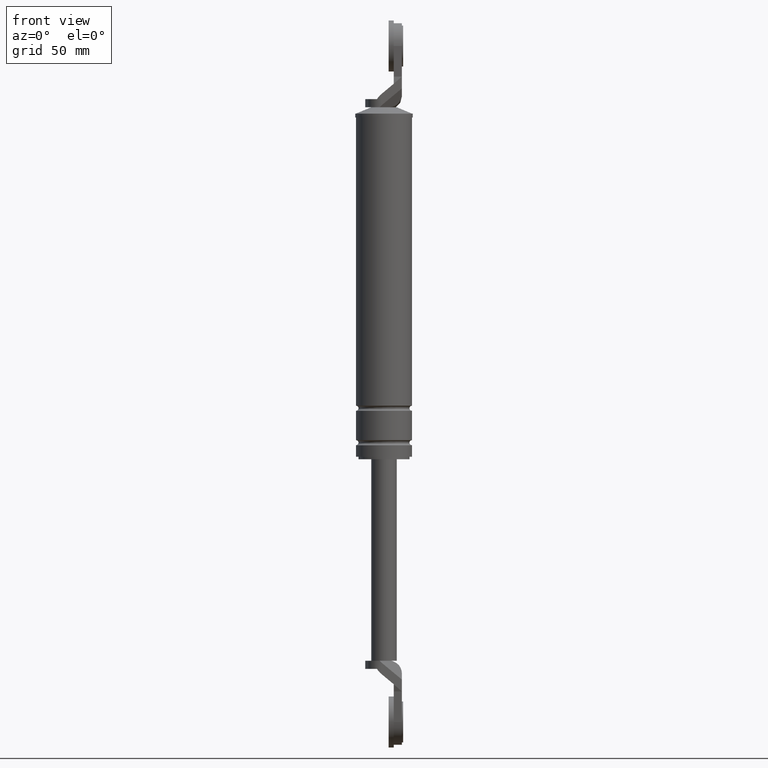
[diagram: clean part render]
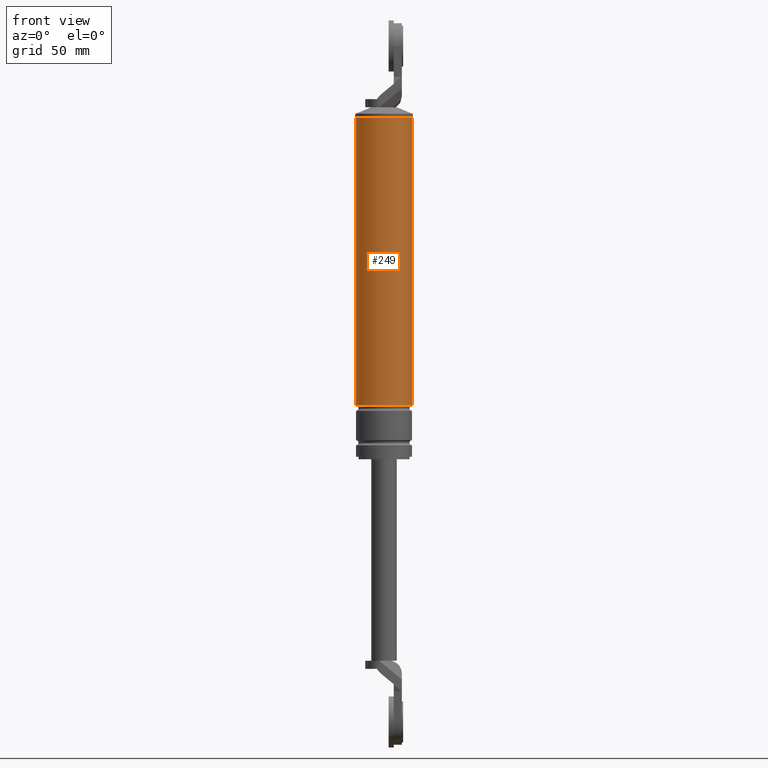
[diagram: same view with one face highlighted and labeled with its STEP entity id]
A machine part, front view. The second image highlights one B-rep face of the part: STEP entity #249.
In plain terms, the highlighted cylindrical surface (edge-blend (fillet) strip) has radius 11 mm, axis along (0, 0, 1).
Its self-contained STEP definition (entity closure, byte-faithful):
#249=ADVANCED_FACE('',(#747),#746,.T.);
#746=CYLINDRICAL_SURFACE('',#1487,1.10000000000E+001);
#747=FACE_OUTER_BOUND('',#1488,.T.);
#1484=CARTESIAN_POINT('',(0.00000000000E+000,3.58204186421E-014,0.00000000000E+000));
#1485=DIRECTION('',(-0.00000000000E+000,-0.00000000000E+000,1.00000000000E+000));
#1486=DIRECTION('',(1.00000000000E+000,0.00000000000E+000,0.00000000000E+000));
#1487=AXIS2_PLACEMENT_3D('',#1484,#1485,#1486);
#1488=EDGE_LOOP('',(#1992,#1993,#1994,#1995));
#1992=ORIENTED_EDGE('',*,*,#2292,.F.);
#1993=ORIENTED_EDGE('',*,*,#2293,.T.);
#1994=ORIENTED_EDGE('',*,*,#2267,.T.);
#1995=ORIENTED_EDGE('',*,*,#2294,.F.);
#2267=EDGE_CURVE('',#2966,#2967,#2968,.T.);
#2292=EDGE_CURVE('',#3097,#3096,#3130,.T.);
#2293=EDGE_CURVE('',#3097,#2966,#3136,.T.);
#2294=EDGE_CURVE('',#3096,#2967,#3142,.T.);
#2966=VERTEX_POINT('',#4077);
#2967=VERTEX_POINT('',#4078);
#2968=CIRCLE('',#4082,1.10000000000E+001);
#3096=VERTEX_POINT('',#4155);
#3097=VERTEX_POINT('',#4156);
#3130=CIRCLE('',#4184,1.10000000000E+001);
#3136=(BOUNDED_CURVE() B_SPLINE_CURVE(1,(#4185,#4186),.UNSPECIFIED.,.F.,.F.) B_SPLINE_CURVE_WITH_KNOTS((2,2),(7.51879695798E-002,9.24812029748E-001),.UNSPECIFIED.) CURVE() GEOMETRIC_REPRESENTATION_ITEM() RATIONAL_B_SPLINE_CURVE((1.00000000000E+000,1.00000000000E+000)) REPRESENTATION_ITEM('') );
#3142=(BOUNDED_CURVE() B_SPLINE_CURVE(1,(#4187,#4188),.UNSPECIFIED.,.F.,.F.) B_SPLINE_CURVE_WITH_KNOTS((2,2),(7.51879699248E-002,9.24812030075E-001),.UNSPECIFIED.) CURVE() GEOMETRIC_REPRESENTATION_ITEM() RATIONAL_B_SPLINE_CURVE((7.50000000000E-001,7.50000000000E-001)) REPRESENTATION_ITEM('') );
#4077=CARTESIAN_POINT('',(1.10000000000E+001,3.61192557345E-014,8.49999850000E+001));
#4078=CARTESIAN_POINT('',(-1.10000000000E+001,3.58204186421E-014,8.49999850000E+001));
#4079=CARTESIAN_POINT('',(0.00000000000E+000,3.58204186421E-014,8.49999850000E+001));
#4080=DIRECTION('',(-0.00000000000E+000,0.00000000000E+000,-1.00000000000E+000));
#4081=DIRECTION('',(-1.00000000000E+000,-1.22460635382E-016,0.00000000000E+000));
#4082=AXIS2_PLACEMENT_3D('',#4079,#4080,#4081);
#4155=CARTESIAN_POINT('',(-1.10000000000E+001,3.58204186421E-014,-2.80000150000E+001));
#4156=CARTESIAN_POINT('',(1.10000000000E+001,3.61192557345E-014,-2.80000150000E+001));
#4181=CARTESIAN_POINT('',(0.00000000000E+000,3.58204186421E-014,-2.80000150000E+001));
#4182=DIRECTION('',(-0.00000000000E+000,0.00000000000E+000,-1.00000000000E+000));
#4183=DIRECTION('',(-1.00000000000E+000,-1.22460635382E-016,0.00000000000E+000));
#4184=AXIS2_PLACEMENT_3D('',#4181,#4182,#4183);
#4185=CARTESIAN_POINT('',(1.10000000000E+001,3.58204186421E-014,-2.80000150459E+001));
#4186=CARTESIAN_POINT('',(1.10000000000E+001,3.58204186421E-014,8.49999849565E+001));
#4187=CARTESIAN_POINT('',(-1.10000000000E+001,3.55271367880E-014,-2.80000150000E+001));
#4188=CARTESIAN_POINT('',(-1.10000000000E+001,3.55271367880E-014,8.49999850000E+001));